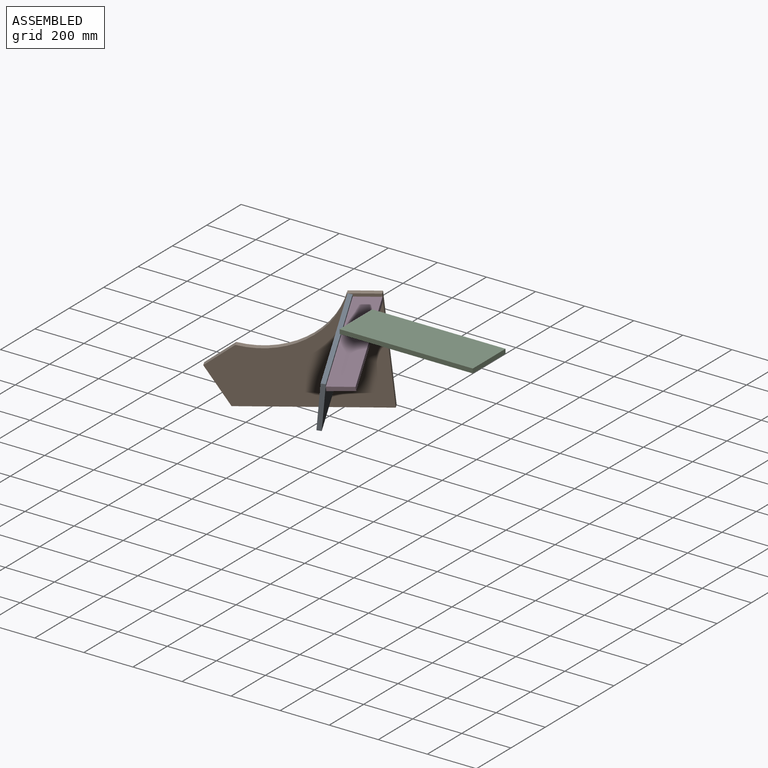
[diagram: assembled view]
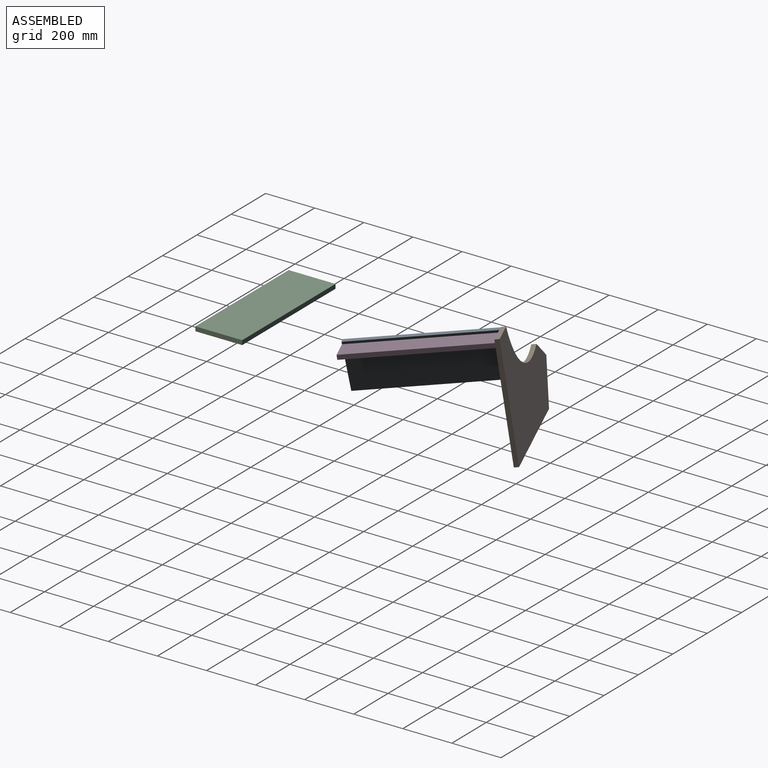
[diagram: assembled view, second angle]
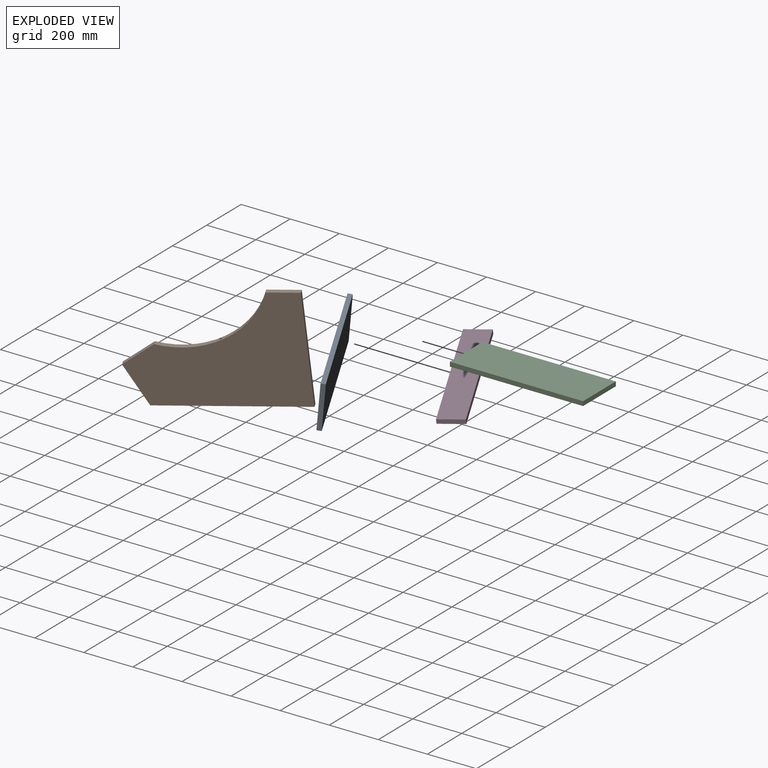
[diagram: exploded view]
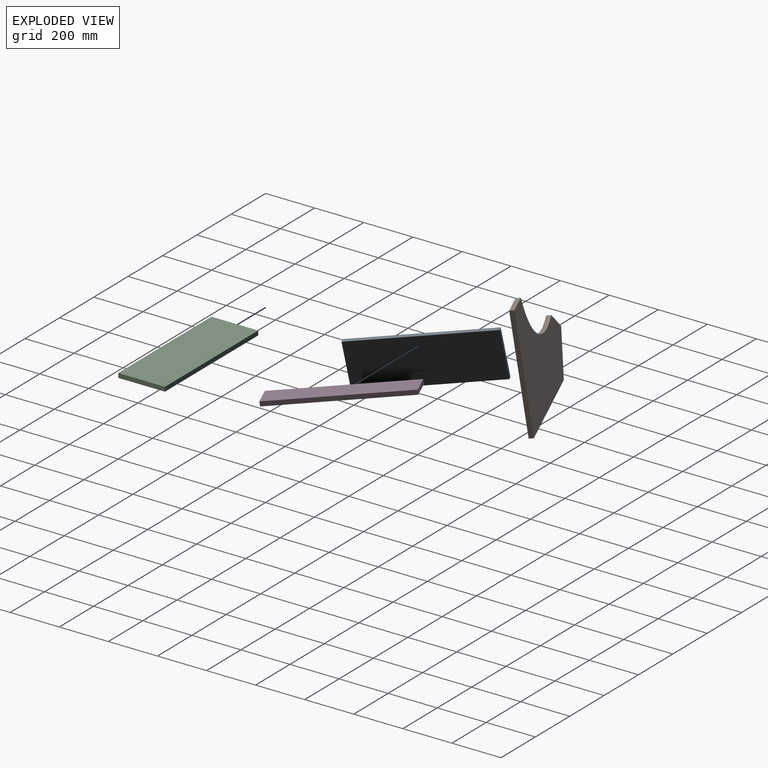
[diagram: exploded view, second angle]
ASSEMBLY  parts=3 mates=2
PART A: 6 faces, bbox 542.9x190.5x18 mm
  f0: plane 542.93x18mm, normal (0,-1,0), area 9772.6mm2, adj f1,f3,f4,f5
  f1: plane 190.5x18mm, normal (1,0,0), area 3429mm2, adj f0,f2,f4,f5
  f2: plane 542.93x18mm, normal (0,1,0), area 9772.6mm2, adj f1,f3,f4,f5
  f3: plane 190.5x18mm, normal (-1,0,0), area 3429mm2, adj f0,f2,f4,f5
  f4: plane 542.93x190.5mm, normal (0,0,1), area 103427.2mm2, adj f0,f1,f2,f3
  f5: plane 542.93x190.5mm, normal (0,0,-1), area 103427.2mm2, adj f0,f1,f2,f3
PART B: 8 faces, bbox 18x457.2x638.5 mm
  f0: plane 457.2x18mm, normal (0,0,-1), area 8229.6mm2, adj f1,f5,f6,f7
  f1: plane 558.8x18mm, normal (0,1,0), area 10058.4mm2, adj f0,f2,f6,f7
  f2: plane 163.37x79.68mm, normal (0,0.44,0.9), area 3271.8mm2, adj f1,f3,f6,f7
  f3: plane 117.63x82.67mm, normal (0,-0.82,0.57), area 2587.9mm2, adj f2,f4,f6,f7
  f4: cylinder r=325.8mm len=400.2mm, axis (-1,0,0), area 9003.4mm2, adj f3,f5,f6,f7
  f5: plane 120.65x18mm, normal (0,-1,0), area 2171.7mm2, adj f0,f4,f6,f7
  f6: plane 638.48x457.2mm, normal (1,0,0), area 185008.1mm2, adj f0,f1,f2,f3,f4,f5
  f7: plane 638.48x457.2mm, normal (-1,0,0), area 185008.1mm2, adj f0,f1,f2,f3,f4,f5
PART C: 6 faces, bbox 542.9x101.6x18 mm
  f0: plane 542.93x18mm, normal (0,-1,0), area 9772.6mm2, adj f1,f3,f4,f5
  f1: plane 101.6x18mm, normal (1,0,0), area 1828.8mm2, adj f0,f2,f4,f5
  f2: plane 542.93x18mm, normal (0,1,0), area 9772.6mm2, adj f1,f3,f4,f5
  f3: plane 101.6x18mm, normal (-1,0,0), area 1828.8mm2, adj f0,f2,f4,f5
  f4: plane 542.93x101.6mm, normal (0,0,1), area 55161.2mm2, adj f0,f1,f2,f3
  f5: plane 542.93x101.6mm, normal (0,0,-1), area 55161.2mm2, adj f0,f1,f2,f3
PLACE A rot(axis=(0.74,-0.38,-0.55),106.8deg) t=(-539.88,274.58,-318.47)mm
PLACE B rot(axis=(-0.38,-0.71,0.59),131.4deg) t=(-874.02,428.41,-363.27)mm
PLACE C rot(axis=(-0.54,-0.84,-0.07),174.6deg) t=(-480.12,287.34,-230.36)mm
MATE planar A.f3 <-> B.f7  axis (-0.42,0.89,0.16) through (-662.63,512.91,-274.86)mm
MATE fastened B.f0 <-> C.f2  axis (-0.91,-0.42,-0.07) through (-548.8,548.57,-171.4)mm
